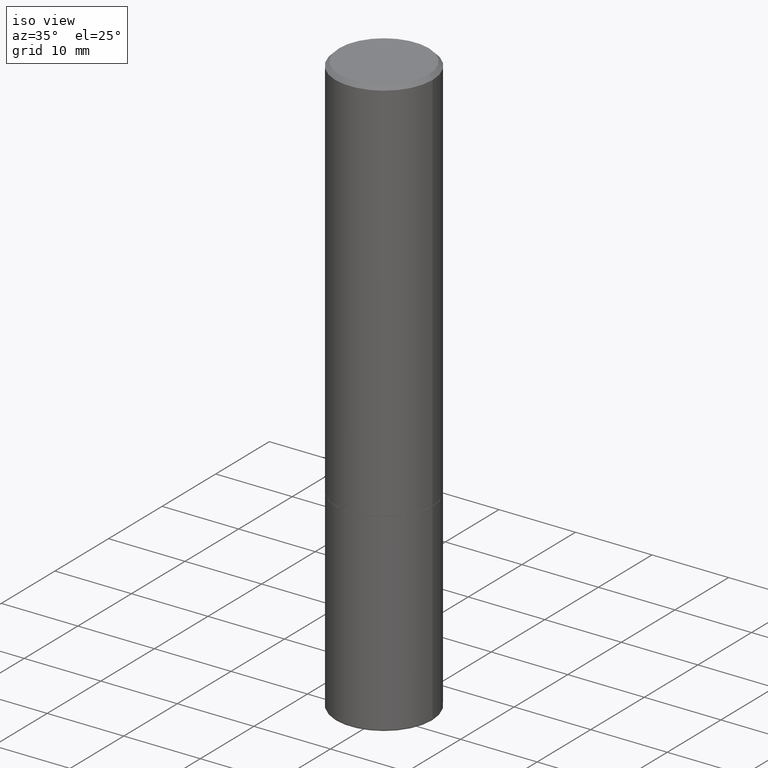
[diagram: clean part render]
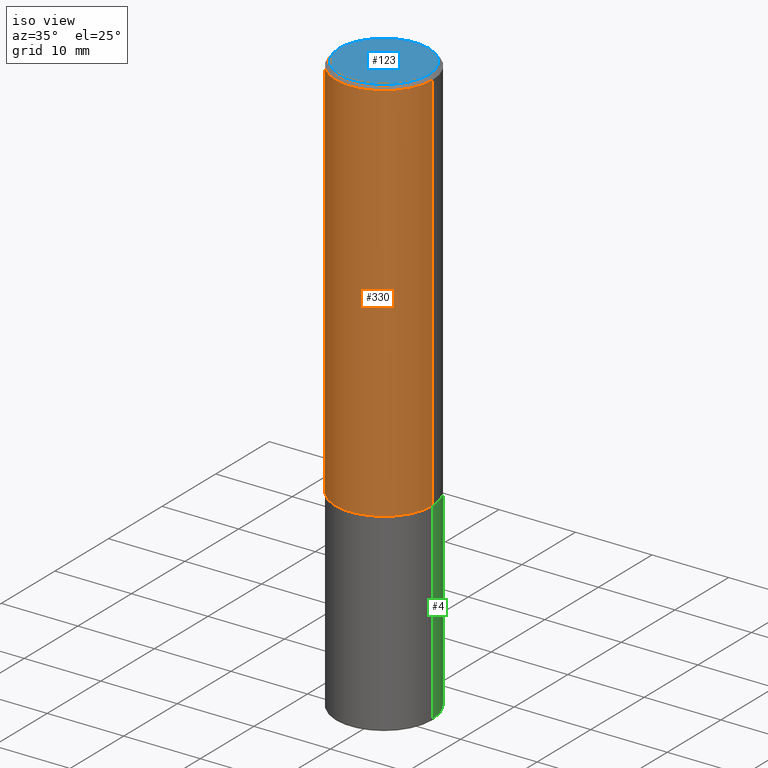
[diagram: same view with three faces highlighted in distinct colors, each labeled with its STEP entity id]
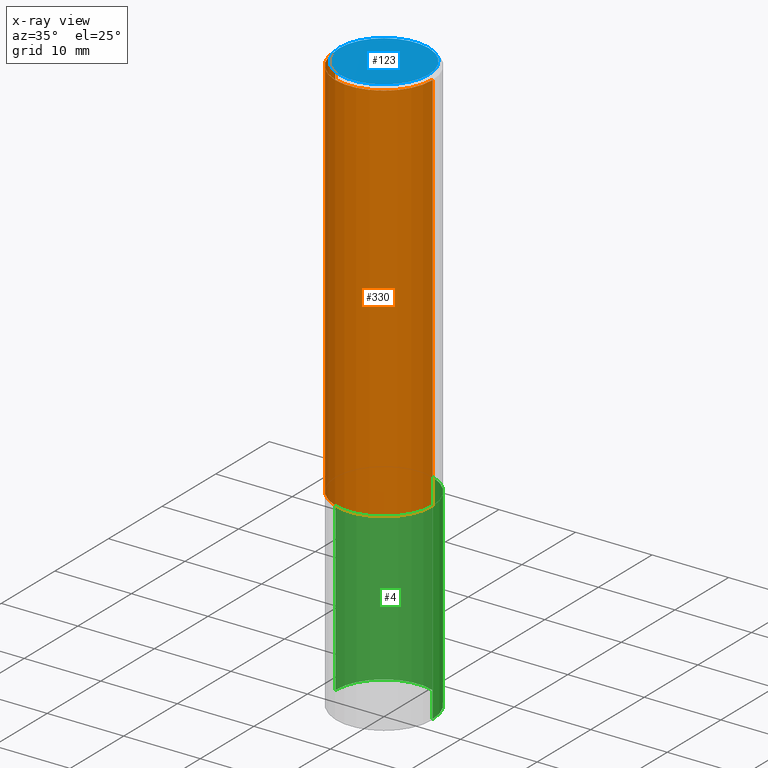
[diagram: x-ray of the same camera — body ghosted, the three highlighted faces saturated]
A machine part, iso view with three faces highlighted in distinct colors.
The next image is the same camera in x-ray (body ghosted, the three faces saturated) — at least one of them is partly hidden behind the body in this view.
Their STEP definitions:

[orange] entity #330 — the highlighted cylindrical surface (partial cylindrical patch) has radius 6.35 mm, axis along (-0, 0, 1).
#21 = ORIENTED_EDGE ( 'NONE', *, *, #120, .T. ) ;
#23 = ORIENTED_EDGE ( 'NONE', *, *, #77, .F. ) ;
#27 = ORIENTED_EDGE ( 'NONE', *, *, #206, .F. ) ;
#31 = CARTESIAN_POINT ( 'NONE',  ( -0.2500000000000000000, 1.675911042644703577E-15, -0.02000000000000005593 ) ) ;
#47 = LINE ( 'NONE', #235, #115 ) ;
#52 = DIRECTION ( 'NONE',  ( -2.445468806185136597E-29, 3.491481338843145583E-15, 1.000000000000000000 ) ) ;
#69 = ORIENTED_EDGE ( 'NONE', *, *, #193, .T. ) ;
#74 = LINE ( 'NONE', #147, #102 ) ;
#77 = EDGE_CURVE ( 'NONE', #160, #191, #74, .T. ) ;
#102 = VECTOR ( 'NONE', #400, 39.37007874015748143 ) ;
#115 = VECTOR ( 'NONE', #143, 39.37007874015748143 ) ;
#119 = CARTESIAN_POINT ( 'NONE',  ( 0.2500000000000000000, -1.784954126219746189E-15, -0.02000000000000005593 ) ) ;
#120 = EDGE_CURVE ( 'NONE', #127, #319, #47, .T. ) ;
#127 = VERTEX_POINT ( 'NONE', #175 ) ;
#143 = DIRECTION ( 'NONE',  ( -2.445468806185136877E-29, 3.491481338843145188E-15, 1.000000000000000000 ) ) ;
#147 = CARTESIAN_POINT ( 'NONE',  ( -0.2500000000000001110, 1.776356839400251254E-15, -1.229733772563727146E-29 ) ) ;
#149 = CIRCLE ( 'NONE', #336, 0.2500000000000002220 ) ;
#152 = EDGE_LOOP ( 'NONE', ( #23, #69, #21, #27 ) ) ;
#159 = CARTESIAN_POINT ( 'NONE',  ( 4.888492143564088712E-29, -6.979471196347448158E-15, -1.999000000000000110 ) ) ;
#160 = VERTEX_POINT ( 'NONE', #369 ) ;
#175 = CARTESIAN_POINT ( 'NONE',  ( 0.2500000000000002220, -8.725211865769017202E-15, -1.999000000000000110 ) ) ;
#182 = DIRECTION ( 'NONE',  ( 1.000000000000000000, -6.982962677686268288E-15, 0.000000000000000000 ) ) ;
#191 = VERTEX_POINT ( 'NONE', #31 ) ;
#193 = EDGE_CURVE ( 'NONE', #160, #127, #149, .T. ) ;
#206 = EDGE_CURVE ( 'NONE', #191, #319, #234, .T. ) ;
#214 = CYLINDRICAL_SURFACE ( 'NONE', #394, 0.2500000000000001110 ) ;
#219 = DIRECTION ( 'NONE',  ( -2.445468806185136597E-29, 3.491481338843145583E-15, 1.000000000000000000 ) ) ;
#234 = CIRCLE ( 'NONE', #343, 0.2500000000000000000 ) ;
#235 = CARTESIAN_POINT ( 'NONE',  ( 0.2500000000000001110, -1.745740669421567664E-15, 1.219044193948984649E-29 ) ) ;
#244 = DIRECTION ( 'NONE',  ( -2.445468806185136597E-29, 3.491481338843145583E-15, 1.000000000000000000 ) ) ;
#312 = DIRECTION ( 'NONE',  ( 1.000000000000000000, -6.982962677686267499E-15, 4.876176775795936353E-29 ) ) ;
#319 = VERTEX_POINT ( 'NONE', #119 ) ;
#330 = ADVANCED_FACE ( 'NONE', ( #348 ), #214, .T. ) ;
#336 = AXIS2_PLACEMENT_3D ( 'NONE', #159, #219, #182 ) ;
#342 = CARTESIAN_POINT ( 'NONE',  ( 0.000000000000000000, 0.000000000000000000, 0.000000000000000000 ) ) ;
#343 = AXIS2_PLACEMENT_3D ( 'NONE', #353, #244, #376 ) ;
#348 = FACE_OUTER_BOUND ( 'NONE', #152, .T. ) ;
#353 = CARTESIAN_POINT ( 'NONE',  ( 4.890937612370287172E-31, -6.982962677686310098E-17, -0.02000000000000005593 ) ) ;
#369 = CARTESIAN_POINT ( 'NONE',  ( -0.2500000000000002220, -1.748293572161901516E-15, -1.999000000000000110 ) ) ;
#376 = DIRECTION ( 'NONE',  ( 1.000000000000000000, -6.982962677686266711E-15, 0.000000000000000000 ) ) ;
#394 = AXIS2_PLACEMENT_3D ( 'NONE', #342, #52, #312 ) ;
#400 = DIRECTION ( 'NONE',  ( -2.445468806185136877E-29, 3.491481338843145188E-15, 1.000000000000000000 ) ) ;

[blue] entity #123 — the highlighted planar face has unit normal (0, -0, -1).
#12 = DIRECTION ( 'NONE',  ( 1.000000000000000000, -6.982962677686267499E-15, 4.875813741439101456E-29 ) ) ;
#43 = CARTESIAN_POINT ( 'NONE',  ( 1.606081415867840870E-15, 0.2299999999999999267, -7.795638892383710465E-16 ) ) ;
#82 = CARTESIAN_POINT ( 'NONE',  ( -1.148236555768741665E-45, 1.639377487418492057E-31, 4.695363739110452099E-17 ) ) ;
#89 = VERTEX_POINT ( 'NONE', #406 ) ;
#113 = DIRECTION ( 'NONE',  ( -2.445468806185136597E-29, 3.491481338843145583E-15, 1.000000000000000000 ) ) ;
#114 = DIRECTION ( 'NONE',  ( 2.438088387897960049E-29, -3.491481338843145188E-15, -1.000000000000000000 ) ) ;
#122 = DIRECTION ( 'NONE',  ( -2.445468806185136597E-29, 3.491481338843145583E-15, 1.000000000000000000 ) ) ;
#123 = ADVANCED_FACE ( 'NONE', ( #210 ), #267, .F. ) ;
#154 = CARTESIAN_POINT ( 'NONE',  ( -1.148236555768741665E-45, 1.639377487418492057E-31, 4.695363739110452099E-17 ) ) ;
#158 = VERTEX_POINT ( 'NONE', #238 ) ;
#166 = EDGE_CURVE ( 'NONE', #158, #89, #309, .T. ) ;
#196 = EDGE_LOOP ( 'NONE', ( #385, #352 ) ) ;
#197 = AXIS2_PLACEMENT_3D ( 'NONE', #154, #122, #345 ) ;
#210 = FACE_OUTER_BOUND ( 'NONE', #196, .T. ) ;
#238 = CARTESIAN_POINT ( 'NONE',  ( -0.2299999999999999267, 1.640996229256272519E-15, 4.695363739109317495E-17 ) ) ;
#246 = AXIS2_PLACEMENT_3D ( 'NONE', #82, #113, #12 ) ;
#267 = PLANE ( 'NONE',  #341 ) ;
#309 = CIRCLE ( 'NONE', #246, 0.2299999999999999267 ) ;
#335 = DIRECTION ( 'NONE',  ( -1.000000000000000000, 6.982962677686265922E-15, -4.876176775795935793E-29 ) ) ;
#341 = AXIS2_PLACEMENT_3D ( 'NONE', #43, #114, #335 ) ;
#345 = DIRECTION ( 'NONE',  ( 1.000000000000000000, -6.982962677686267499E-15, 4.875813741439101456E-29 ) ) ;
#352 = ORIENTED_EDGE ( 'NONE', *, *, #364, .T. ) ;
#364 = EDGE_CURVE ( 'NONE', #89, #158, #377, .T. ) ;
#377 = CIRCLE ( 'NONE', #197, 0.2299999999999999267 ) ;
#385 = ORIENTED_EDGE ( 'NONE', *, *, #166, .T. ) ;
#406 = CARTESIAN_POINT ( 'NONE',  ( 0.2299999999999999267, -1.681434332853598617E-15, 4.695363739111602110E-17 ) ) ;

[green] entity #4 — the highlighted cylindrical surface (partial cylindrical patch) has radius 6.35 mm, axis along (-0, 0, 1).
#4 = ADVANCED_FACE ( 'NONE', ( #67 ), #99, .T. ) ;
#8 = AXIS2_PLACEMENT_3D ( 'NONE', #212, #208, #338 ) ;
#18 = DIRECTION ( 'NONE',  ( -2.445468806185136597E-29, 3.491481338843145583E-15, 1.000000000000000000 ) ) ;
#25 = VERTEX_POINT ( 'NONE', #194 ) ;
#32 = EDGE_CURVE ( 'NONE', #94, #155, #391, .T. ) ;
#56 = VERTEX_POINT ( 'NONE', #173 ) ;
#67 = FACE_OUTER_BOUND ( 'NONE', #243, .T. ) ;
#90 = CARTESIAN_POINT ( 'NONE',  ( -0.2500000000000000000, 1.776356839400250465E-15, -1.229733772563726445E-29 ) ) ;
#94 = VERTEX_POINT ( 'NONE', #334 ) ;
#96 = EDGE_CURVE ( 'NONE', #94, #25, #187, .T. ) ;
#99 = CYLINDRICAL_SURFACE ( 'NONE', #405, 0.2500000000000000000 ) ;
#101 = CARTESIAN_POINT ( 'NONE',  ( 0.2500000000000000000, -1.745740669421566678E-15, 1.219044193948983948E-29 ) ) ;
#108 = EDGE_CURVE ( 'NONE', #155, #56, #383, .T. ) ;
#136 = DIRECTION ( 'NONE',  ( -2.445468806185136597E-29, 3.491481338843145583E-15, 1.000000000000000000 ) ) ;
#155 = VERTEX_POINT ( 'NONE', #300 ) ;
#173 = CARTESIAN_POINT ( 'NONE',  ( -0.2500000000000000000, -6.934889101013398653E-15, -2.000000000000000444 ) ) ;
#185 = ORIENTED_EDGE ( 'NONE', *, *, #108, .F. ) ;
#187 = CIRCLE ( 'NONE', #8, 0.2500000000000000000 ) ;
#194 = CARTESIAN_POINT ( 'NONE',  ( -0.2499999999999998890, -8.663172363740755817E-15, -2.990000000000000213 ) ) ;
#198 = DIRECTION ( 'NONE',  ( 1.000000000000000000, -6.982962677686266711E-15, 4.876176775795935793E-29 ) ) ;
#203 = VECTOR ( 'NONE', #279, 39.37007874015748143 ) ;
#208 = DIRECTION ( 'NONE',  ( -2.445468806185136597E-29, 3.491481338843145583E-15, 1.000000000000000000 ) ) ;
#212 = CARTESIAN_POINT ( 'NONE',  ( 7.311951730493558245E-29, -1.043952920314100628E-14, -2.990000000000000213 ) ) ;
#230 = CARTESIAN_POINT ( 'NONE',  ( 0.000000000000000000, 0.000000000000000000, 0.000000000000000000 ) ) ;
#243 = EDGE_LOOP ( 'NONE', ( #344, #284, #185, #416 ) ) ;
#272 = DIRECTION ( 'NONE',  ( 1.000000000000000000, -6.982962677686266711E-15, 0.000000000000000000 ) ) ;
#279 = DIRECTION ( 'NONE',  ( -2.445468806185136877E-29, 3.491481338843145188E-15, 1.000000000000000000 ) ) ;
#284 = ORIENTED_EDGE ( 'NONE', *, *, #401, .T. ) ;
#295 = AXIS2_PLACEMENT_3D ( 'NONE', #303, #18, #272 ) ;
#300 = CARTESIAN_POINT ( 'NONE',  ( 0.2500000000000000000, -8.728703347107858632E-15, -2.000000000000000444 ) ) ;
#303 = CARTESIAN_POINT ( 'NONE',  ( 4.890937612370273754E-29, -6.982962677686291954E-15, -2.000000000000000444 ) ) ;
#334 = CARTESIAN_POINT ( 'NONE',  ( 0.2499999999999998890, -1.218526987256257138E-14, -2.990000000000000213 ) ) ;
#338 = DIRECTION ( 'NONE',  ( 1.000000000000000000, -6.982962677686262766E-15, 0.000000000000000000 ) ) ;
#344 = ORIENTED_EDGE ( 'NONE', *, *, #96, .T. ) ;
#354 = DIRECTION ( 'NONE',  ( -2.445468806185136877E-29, 3.491481338843145188E-15, 1.000000000000000000 ) ) ;
#383 = CIRCLE ( 'NONE', #295, 0.2500000000000000000 ) ;
#391 = LINE ( 'NONE', #101, #398 ) ;
#398 = VECTOR ( 'NONE', #354, 39.37007874015748143 ) ;
#401 = EDGE_CURVE ( 'NONE', #25, #56, #414, .T. ) ;
#405 = AXIS2_PLACEMENT_3D ( 'NONE', #230, #136, #198 ) ;
#414 = LINE ( 'NONE', #90, #203 ) ;
#416 = ORIENTED_EDGE ( 'NONE', *, *, #32, .F. ) ;